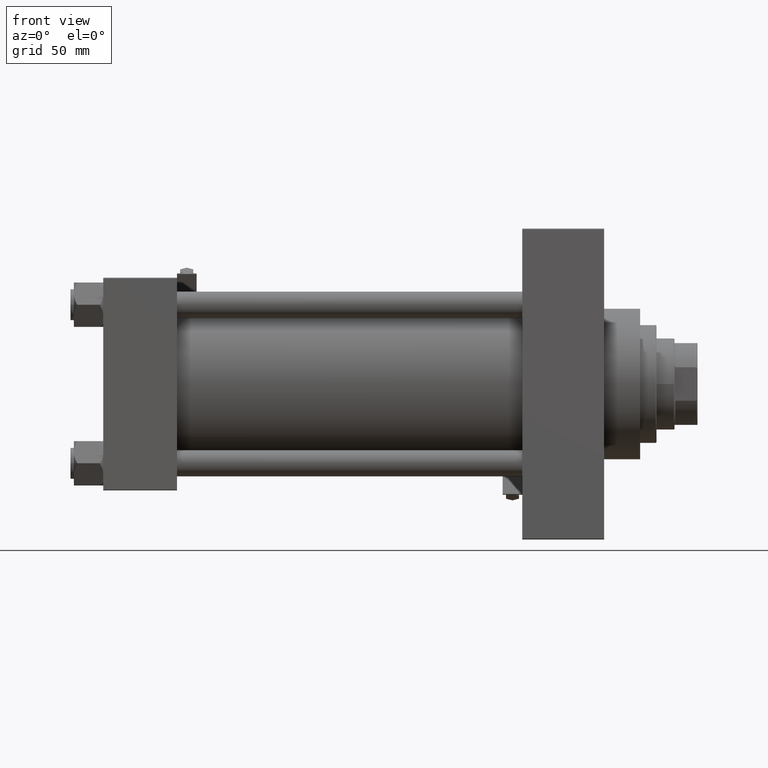
[diagram: clean part render]
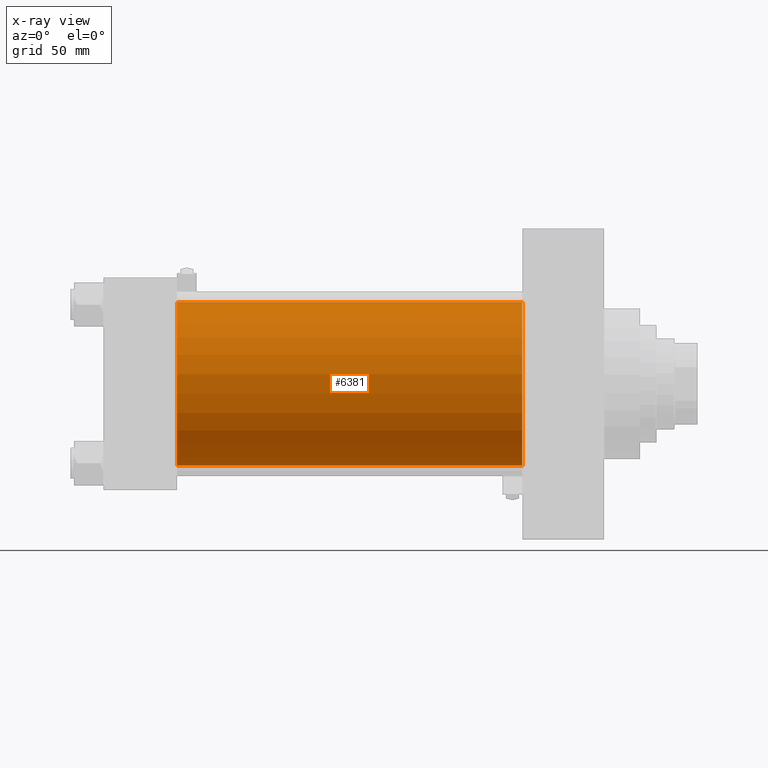
[diagram: x-ray — body ghosted, one internal face saturated and labeled with its STEP entity id]
A machine part, front view, then the same camera in x-ray: the body is ghosted and one INTERNAL B-rep face — a face not visible from any outside direction — is saturated and labeled: STEP entity #6381.
In plain terms, the highlighted cylindrical surface (partial cylindrical patch) has radius 50 mm, axis along (-1, -0, -0).
Its self-contained STEP definition (entity closure, byte-faithful):
#1569 = LINE ( 'NONE', #45111, #18360 ) ;
#3588 = DIRECTION ( 'NONE',  ( 0.000000000000000000, 0.000000000000000000, -1.000000000000000000 ) ) ;
#3785 = CIRCLE ( 'NONE', #44792, 50.00000000000000000 ) ;
#4102 = CARTESIAN_POINT ( 'NONE',  ( 45.00000000000000000, -2.602085213965210642E-15, 50.00000000000000000 ) ) ;
#5206 = VERTEX_POINT ( 'NONE', #16664 ) ;
#5931 = EDGE_CURVE ( 'NONE', #17776, #5206, #3785, .T. ) ;
#6381 = ADVANCED_FACE ( 'NONE', ( #43333 ), #21335, .F. ) ;
#9253 = DIRECTION ( 'NONE',  ( 0.000000000000000000, 0.000000000000000000, 1.000000000000000000 ) ) ;
#10375 = CARTESIAN_POINT ( 'NONE',  ( 256.0000000000000000, -2.602085213965210642E-15, 50.00000000000000000 ) ) ;
#12377 = ORIENTED_EDGE ( 'NONE', *, *, #5931, .T. ) ;
#13832 = CIRCLE ( 'NONE', #37503, 50.00000000000000000 ) ;
#13984 = CARTESIAN_POINT ( 'NONE',  ( 256.0000000000000000, -2.602085213965210642E-15, 0.000000000000000000 ) ) ;
#14488 = CARTESIAN_POINT ( 'NONE',  ( 256.0000000000000000, 3.521148781771555838E-15, -50.00000000000000000 ) ) ;
#16664 = CARTESIAN_POINT ( 'NONE',  ( 256.0000000000000000, 3.521148781771555838E-15, -50.00000000000000000 ) ) ;
#17346 = VERTEX_POINT ( 'NONE', #39116 ) ;
#17776 = VERTEX_POINT ( 'NONE', #10375 ) ;
#18360 = VECTOR ( 'NONE', #42317, 1000.000000000000000 ) ;
#20925 = DIRECTION ( 'NONE',  ( 1.000000000000000000, 0.000000000000000000, 0.000000000000000000 ) ) ;
#21335 = CYLINDRICAL_SURFACE ( 'NONE', #38525, 50.00000000000000000 ) ;
#25239 = ORIENTED_EDGE ( 'NONE', *, *, #27130, .F. ) ;
#26079 = CARTESIAN_POINT ( 'NONE',  ( 45.00000000000000000, -2.602085213965210642E-15, 0.000000000000000000 ) ) ;
#26708 = VECTOR ( 'NONE', #44375, 1000.000000000000000 ) ;
#27130 = EDGE_CURVE ( 'NONE', #41690, #17346, #13832, .T. ) ;
#28275 = CARTESIAN_POINT ( 'NONE',  ( 256.0000000000000000, -2.602085213965210642E-15, 0.000000000000000000 ) ) ;
#28584 = DIRECTION ( 'NONE',  ( 0.000000000000000000, 0.000000000000000000, -1.000000000000000000 ) ) ;
#29270 = ORIENTED_EDGE ( 'NONE', *, *, #47058, .F. ) ;
#30357 = ORIENTED_EDGE ( 'NONE', *, *, #34136, .T. ) ;
#32220 = DIRECTION ( 'NONE',  ( -1.000000000000000000, -0.000000000000000000, -0.000000000000000000 ) ) ;
#33494 = DIRECTION ( 'NONE',  ( 1.000000000000000000, 0.000000000000000000, 0.000000000000000000 ) ) ;
#34136 = EDGE_CURVE ( 'NONE', #5206, #17346, #36492, .T. ) ;
#35540 = EDGE_LOOP ( 'NONE', ( #12377, #30357, #25239, #29270 ) ) ;
#36492 = LINE ( 'NONE', #14488, #26708 ) ;
#37503 = AXIS2_PLACEMENT_3D ( 'NONE', #26079, #33494, #3588 ) ;
#38525 = AXIS2_PLACEMENT_3D ( 'NONE', #28275, #32220, #9253 ) ;
#39116 = CARTESIAN_POINT ( 'NONE',  ( 45.00000000000000000, 3.521148781771555838E-15, -50.00000000000000000 ) ) ;
#41690 = VERTEX_POINT ( 'NONE', #4102 ) ;
#42317 = DIRECTION ( 'NONE',  ( -1.000000000000000000, -0.000000000000000000, -0.000000000000000000 ) ) ;
#43333 = FACE_OUTER_BOUND ( 'NONE', #35540, .T. ) ;
#44375 = DIRECTION ( 'NONE',  ( -1.000000000000000000, -0.000000000000000000, -0.000000000000000000 ) ) ;
#44792 = AXIS2_PLACEMENT_3D ( 'NONE', #13984, #20925, #28584 ) ;
#45111 = CARTESIAN_POINT ( 'NONE',  ( 256.0000000000000000, -2.602085213965210642E-15, 50.00000000000000000 ) ) ;
#47058 = EDGE_CURVE ( 'NONE', #17776, #41690, #1569, .T. ) ;